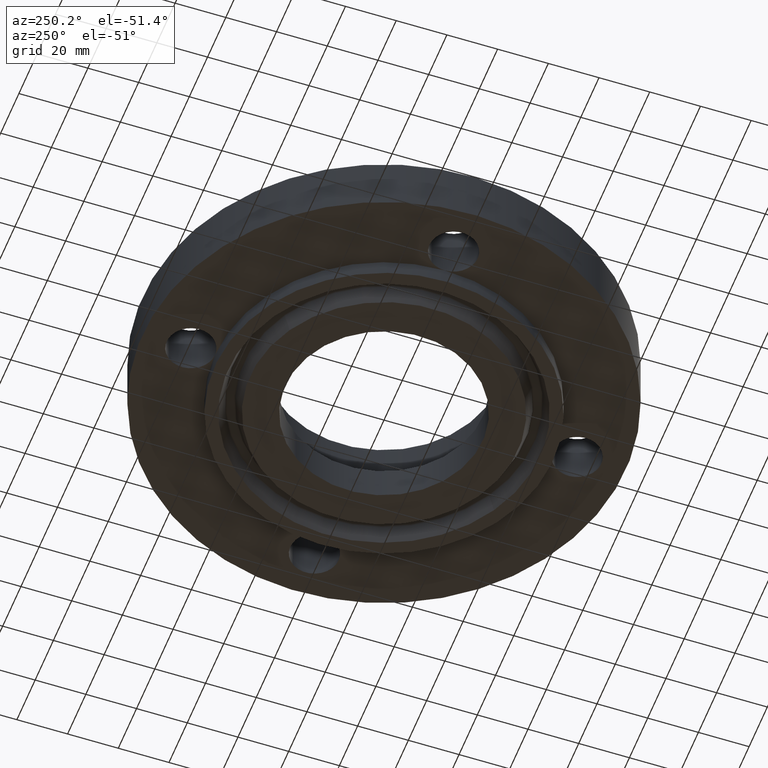
[diagram: clean part render]
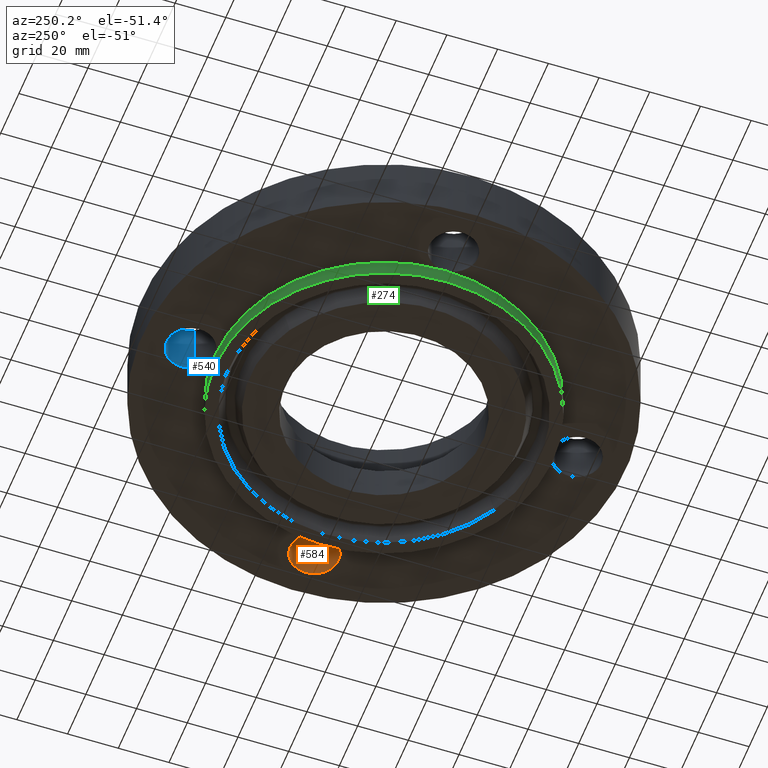
[diagram: same view with three faces highlighted in distinct colors, each labeled with its STEP entity id]
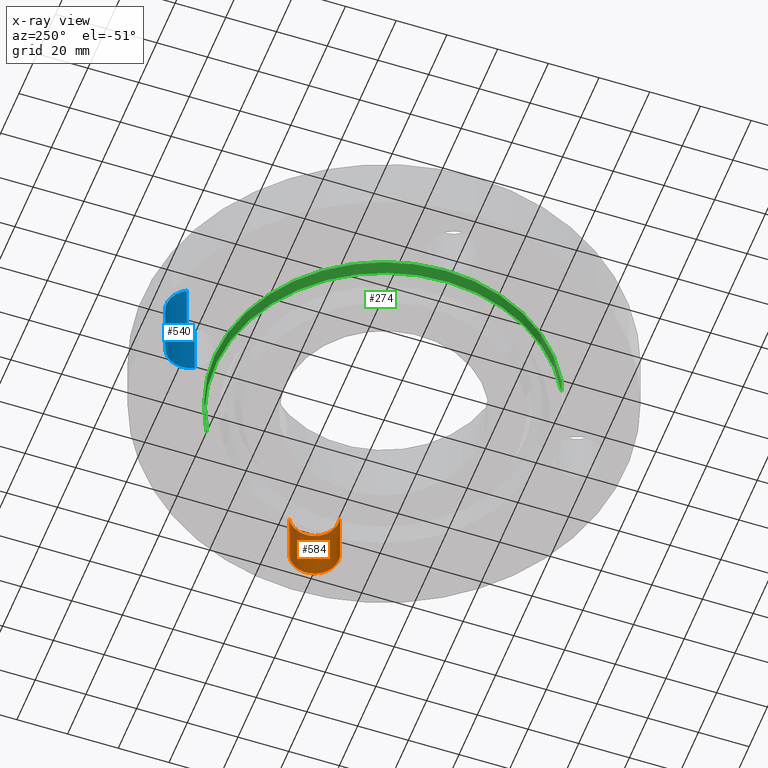
[diagram: x-ray of the same camera — body ghosted, the three highlighted faces saturated]
A machine part, auxiliary view with three faces highlighted in distinct colors.
The next image is the same camera in x-ray (body ghosted, the three faces saturated) — at least one of them is partly hidden behind the body in this view.
Their STEP definitions:

[orange] entity #584 — the highlighted cylindrical surface (edge-blend (fillet) strip) has radius 9.525 mm, axis along (0, -0, -1).
#354=AXIS2_PLACEMENT_3D('Circle Axis2P3D',#352,#353,$) ;
#557=AXIS2_PLACEMENT_3D('Cylinder Axis2P3D',#554,#555,#556) ;
#575=AXIS2_PLACEMENT_3D('Circle Axis2P3D',#573,#574,$) ;
#349=CARTESIAN_POINT('Vertex',(2.82021542303,-0.32909346071,0.)) ;
#352=CARTESIAN_POINT('Axis2P3D Location',(3.00000000001,5.59482469102E-016,0.)) ;
#356=CARTESIAN_POINT('Vertex',(3.17978457699,0.32909346071,0.)) ;
#554=CARTESIAN_POINT('Axis2P3D Location',(3.00000000001,1.83697019873E-016,0.87606299213)) ;
#559=CARTESIAN_POINT('Line Origine',(3.17978457699,0.32909346071,0.440000000002)) ;
#563=CARTESIAN_POINT('Vertex',(3.17978457699,0.32909346071,0.880000000004)) ;
#566=CARTESIAN_POINT('Line Origine',(2.82021542303,-0.32909346071,0.440000000002)) ;
#570=CARTESIAN_POINT('Vertex',(2.82021542303,-0.32909346071,0.880000000004)) ;
#573=CARTESIAN_POINT('Axis2P3D Location',(3.00000000001,1.83697019873E-016,0.880000000004)) ;
#353=DIRECTION('Axis2P3D Direction',(0.,0.,-0.0393700787402)) ;
#555=DIRECTION('Axis2P3D Direction',(0.,-0.,-0.0393700787402)) ;
#556=DIRECTION('Axis2P3D XDirection',(-0.0188750212049,-0.0345504945626,0.)) ;
#560=DIRECTION('Vector Direction',(0.,0.,-0.0393700787402)) ;
#567=DIRECTION('Vector Direction',(0.,0.,-0.0393700787402)) ;
#574=DIRECTION('Axis2P3D Direction',(0.,-0.,-0.0393700787402)) ;
#561=VECTOR('Line Direction',#560,0.0393700787402) ;
#568=VECTOR('Line Direction',#567,0.0393700787402) ;
#579=ORIENTED_EDGE('',*,*,#565,.F.) ;
#580=ORIENTED_EDGE('',*,*,#358,.T.) ;
#581=ORIENTED_EDGE('',*,*,#572,.T.) ;
#582=ORIENTED_EDGE('',*,*,#577,.F.) ;
#584=ADVANCED_FACE('PartBody',(#583),#558,.F.) ;
#355=CIRCLE('generated circle',#354,0.375000000001) ;
#576=CIRCLE('generated circle',#575,0.375000000001) ;
#558=CYLINDRICAL_SURFACE('generated cylinder',#557,0.375000000001) ;
#358=EDGE_CURVE('',#357,#350,#355,.T.) ;
#565=EDGE_CURVE('',#357,#564,#562,.F.) ;
#572=EDGE_CURVE('',#350,#571,#569,.F.) ;
#577=EDGE_CURVE('',#564,#571,#576,.T.) ;
#578=EDGE_LOOP('',(#579,#580,#581,#582)) ;
#583=FACE_OUTER_BOUND('',#578,.T.) ;
#562=LINE('Line',#559,#561) ;
#569=LINE('Line',#566,#568) ;
#350=VERTEX_POINT('',#349) ;
#357=VERTEX_POINT('',#356) ;
#564=VERTEX_POINT('',#563) ;
#571=VERTEX_POINT('',#570) ;

[blue] entity #540 — the highlighted cylindrical surface (edge-blend (fillet) strip) has radius 9.525 mm, axis along (0, -0, -1).
#373=AXIS2_PLACEMENT_3D('Circle Axis2P3D',#371,#372,$) ;
#513=AXIS2_PLACEMENT_3D('Cylinder Axis2P3D',#510,#511,#512) ;
#531=AXIS2_PLACEMENT_3D('Circle Axis2P3D',#529,#530,$) ;
#368=CARTESIAN_POINT('Vertex',(0.32909346071,2.82021542303,0.)) ;
#371=CARTESIAN_POINT('Axis2P3D Location',(-8.74191357973E-018,3.00000000001,0.)) ;
#375=CARTESIAN_POINT('Vertex',(-0.32909346071,3.17978457699,0.)) ;
#510=CARTESIAN_POINT('Axis2P3D Location',(0.,3.00000000001,0.87606299213)) ;
#515=CARTESIAN_POINT('Line Origine',(-0.32909346071,3.17978457699,0.440000000002)) ;
#519=CARTESIAN_POINT('Vertex',(-0.32909346071,3.17978457699,0.880000000004)) ;
#522=CARTESIAN_POINT('Line Origine',(0.32909346071,2.82021542303,0.440000000002)) ;
#526=CARTESIAN_POINT('Vertex',(0.32909346071,2.82021542303,0.880000000004)) ;
#529=CARTESIAN_POINT('Axis2P3D Location',(0.,3.00000000001,0.880000000004)) ;
#372=DIRECTION('Axis2P3D Direction',(0.,0.,-0.0393700787402)) ;
#511=DIRECTION('Axis2P3D Direction',(0.,-0.,-0.0393700787402)) ;
#512=DIRECTION('Axis2P3D XDirection',(0.0345504945626,-0.0188750212049,0.)) ;
#516=DIRECTION('Vector Direction',(0.,0.,-0.0393700787402)) ;
#523=DIRECTION('Vector Direction',(0.,0.,-0.0393700787402)) ;
#530=DIRECTION('Axis2P3D Direction',(0.,-0.,-0.0393700787402)) ;
#517=VECTOR('Line Direction',#516,0.0393700787402) ;
#524=VECTOR('Line Direction',#523,0.0393700787402) ;
#535=ORIENTED_EDGE('',*,*,#521,.F.) ;
#536=ORIENTED_EDGE('',*,*,#377,.T.) ;
#537=ORIENTED_EDGE('',*,*,#528,.T.) ;
#538=ORIENTED_EDGE('',*,*,#533,.F.) ;
#540=ADVANCED_FACE('PartBody',(#539),#514,.F.) ;
#374=CIRCLE('generated circle',#373,0.375000000001) ;
#532=CIRCLE('generated circle',#531,0.375000000001) ;
#514=CYLINDRICAL_SURFACE('generated cylinder',#513,0.375000000001) ;
#377=EDGE_CURVE('',#376,#369,#374,.T.) ;
#521=EDGE_CURVE('',#376,#520,#518,.F.) ;
#528=EDGE_CURVE('',#369,#527,#525,.F.) ;
#533=EDGE_CURVE('',#520,#527,#532,.T.) ;
#534=EDGE_LOOP('',(#535,#536,#537,#538)) ;
#539=FACE_OUTER_BOUND('',#534,.T.) ;
#518=LINE('Line',#515,#517) ;
#525=LINE('Line',#522,#524) ;
#369=VERTEX_POINT('',#368) ;
#376=VERTEX_POINT('',#375) ;
#520=VERTEX_POINT('',#519) ;
#527=VERTEX_POINT('',#526) ;

[green] entity #274 — the highlighted cylindrical surface (partial cylindrical patch) has radius 66.675 mm, axis along (0, 0, -1).
#193=AXIS2_PLACEMENT_3D('Circle Axis2P3D',#191,#192,$) ;
#231=AXIS2_PLACEMENT_3D('Cylinder Axis2P3D',#228,#229,#230) ;
#242=AXIS2_PLACEMENT_3D('Circle Axis2P3D',#240,#241,$) ;
#249=AXIS2_PLACEMENT_3D('Circle Axis2P3D',#247,#248,$) ;
#256=AXIS2_PLACEMENT_3D('Circle Axis2P3D',#254,#255,$) ;
#191=CARTESIAN_POINT('Axis2P3D Location',(0.,0.,-0.250000000001)) ;
#195=CARTESIAN_POINT('Vertex',(-1.25849203884,-2.30365422497,-0.250000000001)) ;
#197=CARTESIAN_POINT('Vertex',(1.25849203884,2.30365422497,-0.250000000001)) ;
#228=CARTESIAN_POINT('Axis2P3D Location',(0.,0.,0.435000000002)) ;
#233=CARTESIAN_POINT('Line Origine',(-1.25849203884,-2.30365422497,-0.125)) ;
#237=CARTESIAN_POINT('Vertex',(-1.25849203884,-2.30365422497,2.79741234551E-016)) ;
#240=CARTESIAN_POINT('Axis2P3D Location',(0.,0.,2.79741234551E-016)) ;
#244=CARTESIAN_POINT('Vertex',(-2.62500000001,-5.59482469102E-016,0.)) ;
#247=CARTESIAN_POINT('Axis2P3D Location',(0.,0.,2.79741234551E-016)) ;
#251=CARTESIAN_POINT('Vertex',(-1.12514424672E-015,2.62500000001,2.79741234551E-016)) ;
#254=CARTESIAN_POINT('Axis2P3D Location',(0.,0.,2.79741234551E-016)) ;
#258=CARTESIAN_POINT('Vertex',(1.25849203884,2.30365422497,2.79741234551E-016)) ;
#261=CARTESIAN_POINT('Line Origine',(1.25849203884,2.30365422497,-0.125)) ;
#192=DIRECTION('Axis2P3D Direction',(0.,0.,-0.0393700787402)) ;
#229=DIRECTION('Axis2P3D Direction',(0.,0.,-0.0393700787402)) ;
#230=DIRECTION('Axis2P3D XDirection',(0.0188750212049,0.0345504945626,0.)) ;
#234=DIRECTION('Vector Direction',(0.,0.,-0.0393700787402)) ;
#241=DIRECTION('Axis2P3D Direction',(0.,0.,-0.0393700787402)) ;
#248=DIRECTION('Axis2P3D Direction',(0.,0.,-0.0393700787402)) ;
#255=DIRECTION('Axis2P3D Direction',(0.,0.,-0.0393700787402)) ;
#262=DIRECTION('Vector Direction',(0.,0.,-0.0393700787402)) ;
#235=VECTOR('Line Direction',#234,0.0393700787402) ;
#263=VECTOR('Line Direction',#262,0.0393700787402) ;
#267=ORIENTED_EDGE('',*,*,#199,.F.) ;
#268=ORIENTED_EDGE('',*,*,#239,.T.) ;
#269=ORIENTED_EDGE('',*,*,#246,.T.) ;
#270=ORIENTED_EDGE('',*,*,#253,.T.) ;
#271=ORIENTED_EDGE('',*,*,#260,.T.) ;
#272=ORIENTED_EDGE('',*,*,#265,.F.) ;
#274=ADVANCED_FACE('PartBody',(#273),#232,.T.) ;
#194=CIRCLE('generated circle',#193,2.62500000001) ;
#243=CIRCLE('generated circle',#242,2.62500000001) ;
#250=CIRCLE('generated circle',#249,2.62500000001) ;
#257=CIRCLE('generated circle',#256,2.62500000001) ;
#232=CYLINDRICAL_SURFACE('generated cylinder',#231,2.62500000001) ;
#199=EDGE_CURVE('',#196,#198,#194,.T.) ;
#239=EDGE_CURVE('',#196,#238,#236,.F.) ;
#246=EDGE_CURVE('',#238,#245,#243,.T.) ;
#253=EDGE_CURVE('',#245,#252,#250,.T.) ;
#260=EDGE_CURVE('',#252,#259,#257,.T.) ;
#265=EDGE_CURVE('',#198,#259,#264,.F.) ;
#266=EDGE_LOOP('',(#267,#268,#269,#270,#271,#272)) ;
#273=FACE_OUTER_BOUND('',#266,.T.) ;
#236=LINE('Line',#233,#235) ;
#264=LINE('Line',#261,#263) ;
#196=VERTEX_POINT('',#195) ;
#198=VERTEX_POINT('',#197) ;
#238=VERTEX_POINT('',#237) ;
#245=VERTEX_POINT('',#244) ;
#252=VERTEX_POINT('',#251) ;
#259=VERTEX_POINT('',#258) ;